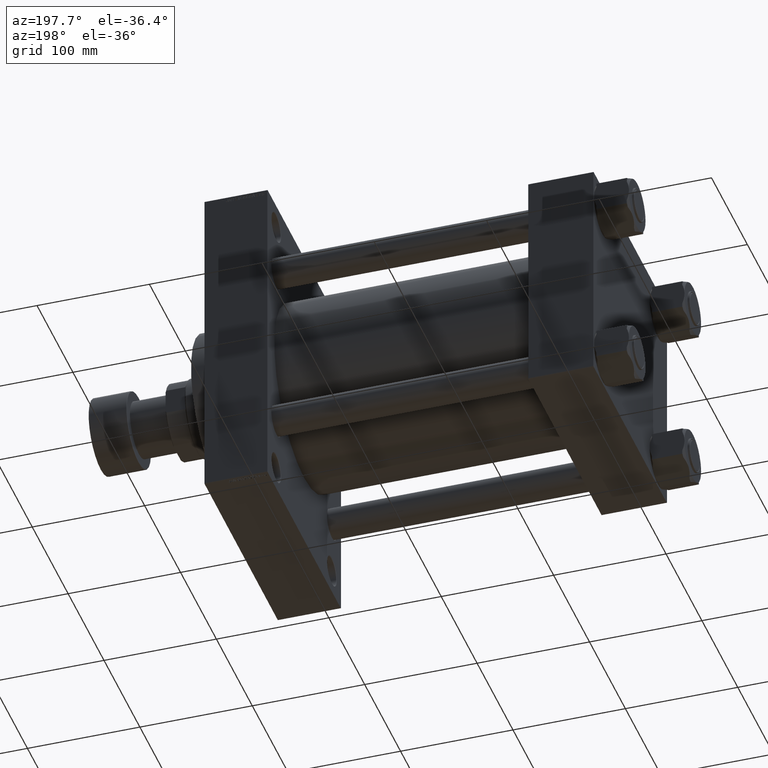
[diagram: clean part render]
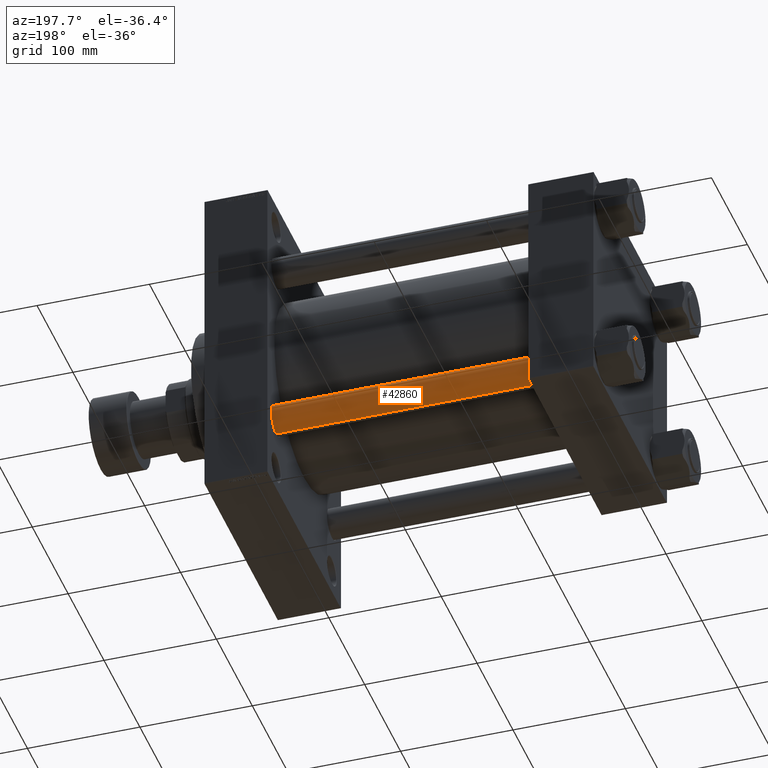
[diagram: same view with one face highlighted and labeled with its STEP entity id]
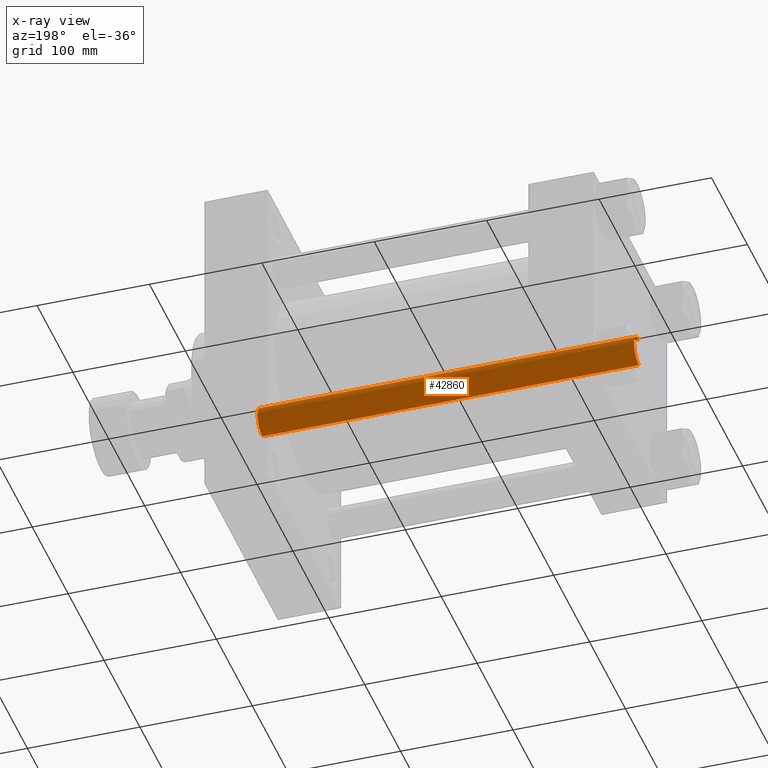
[diagram: x-ray of the same camera — body ghosted, the highlighted face saturated]
A machine part, auxiliary view. The second image highlights one B-rep face of the part: STEP entity #42860.
The next image is the same camera in x-ray: the body ghosted, the highlighted face saturated — about 0% of this face is hidden behind the body in this view.
In plain terms, the highlighted cylindrical surface (edge-blend (fillet) strip) has radius 13.5 mm, axis along (-1, -0, 0).
Its self-contained STEP definition (entity closure, byte-faithful):
#71 = CARTESIAN_POINT ( 'NONE',  ( 13.50000000000000000, 1.653273178848926472E-15, 336.0000000000000000 ) ) ;
#2561 = VERTEX_POINT ( 'NONE', #41167 ) ;
#4633 = DIRECTION ( 'NONE',  ( 1.000000000000000000, 0.000000000000000000, 0.000000000000000000 ) ) ;
#5518 = EDGE_CURVE ( 'NONE', #2561, #30484, #11139, .T. ) ;
#7623 = FACE_OUTER_BOUND ( 'NONE', #28003, .T. ) ;
#8049 = AXIS2_PLACEMENT_3D ( 'NONE', #37069, #29037, #14666 ) ;
#9154 = EDGE_CURVE ( 'NONE', #2561, #18990, #25339, .T. ) ;
#9208 = VERTEX_POINT ( 'NONE', #45989 ) ;
#10528 = DIRECTION ( 'NONE',  ( 1.000000000000000000, 0.000000000000000000, 0.000000000000000000 ) ) ;
#10774 = DIRECTION ( 'NONE',  ( -0.000000000000000000, -0.000000000000000000, 1.000000000000000000 ) ) ;
#11139 = LINE ( 'NONE', #14061, #13332 ) ;
#11390 = DIRECTION ( 'NONE',  ( -0.000000000000000000, -0.000000000000000000, -1.000000000000000000 ) ) ;
#13332 = VECTOR ( 'NONE', #11390, 1000.000000000000000 ) ;
#14061 = CARTESIAN_POINT ( 'NONE',  ( -13.50000000000000000, 0.000000000000000000, 336.0000000000000000 ) ) ;
#14666 = DIRECTION ( 'NONE',  ( -1.000000000000000000, 0.000000000000000000, 0.000000000000000000 ) ) ;
#16638 = CARTESIAN_POINT ( 'NONE',  ( -13.50000000000000000, 0.000000000000000000, 0.5000000000002779998 ) ) ;
#17153 = EDGE_CURVE ( 'NONE', #9208, #30484, #45663, .T. ) ;
#18990 = VERTEX_POINT ( 'NONE', #40320 ) ;
#22459 = DIRECTION ( 'NONE',  ( -0.000000000000000000, -0.000000000000000000, -1.000000000000000000 ) ) ;
#25339 = CIRCLE ( 'NONE', #30294, 13.50000000000000000 ) ;
#26221 = AXIS2_PLACEMENT_3D ( 'NONE', #29269, #10774, #10528 ) ;
#28003 = EDGE_LOOP ( 'NONE', ( #42983, #46556, #46327, #36744 ) ) ;
#29037 = DIRECTION ( 'NONE',  ( -0.000000000000000000, -0.000000000000000000, -1.000000000000000000 ) ) ;
#29269 = CARTESIAN_POINT ( 'NONE',  ( 0.000000000000000000, 0.000000000000000000, 0.5000000000002779998 ) ) ;
#30294 = AXIS2_PLACEMENT_3D ( 'NONE', #31123, #35264, #4633 ) ;
#30484 = VERTEX_POINT ( 'NONE', #16638 ) ;
#31123 = CARTESIAN_POINT ( 'NONE',  ( 0.000000000000000000, 0.000000000000000000, 335.5000000000000568 ) ) ;
#32062 = VECTOR ( 'NONE', #22459, 1000.000000000000000 ) ;
#33163 = LINE ( 'NONE', #71, #32062 ) ;
#35264 = DIRECTION ( 'NONE',  ( 0.000000000000000000, 0.000000000000000000, -1.000000000000000000 ) ) ;
#36244 = EDGE_CURVE ( 'NONE', #18990, #9208, #33163, .T. ) ;
#36354 = CYLINDRICAL_SURFACE ( 'NONE', #8049, 13.50000000000000000 ) ;
#36744 = ORIENTED_EDGE ( 'NONE', *, *, #5518, .F. ) ;
#37069 = CARTESIAN_POINT ( 'NONE',  ( 0.000000000000000000, 0.000000000000000000, 336.0000000000000000 ) ) ;
#40320 = CARTESIAN_POINT ( 'NONE',  ( 13.50000000000000000, 1.653273178848926472E-15, 335.5000000000000568 ) ) ;
#41167 = CARTESIAN_POINT ( 'NONE',  ( -13.50000000000000000, 0.000000000000000000, 335.5000000000000568 ) ) ;
#42860 = ADVANCED_FACE ( 'NONE', ( #7623 ), #36354, .T. ) ;
#42983 = ORIENTED_EDGE ( 'NONE', *, *, #9154, .T. ) ;
#45663 = CIRCLE ( 'NONE', #26221, 13.50000000000000000 ) ;
#45989 = CARTESIAN_POINT ( 'NONE',  ( 13.50000000000000000, 1.653273178848926472E-15, 0.5000000000002779998 ) ) ;
#46327 = ORIENTED_EDGE ( 'NONE', *, *, #17153, .T. ) ;
#46556 = ORIENTED_EDGE ( 'NONE', *, *, #36244, .T. ) ;